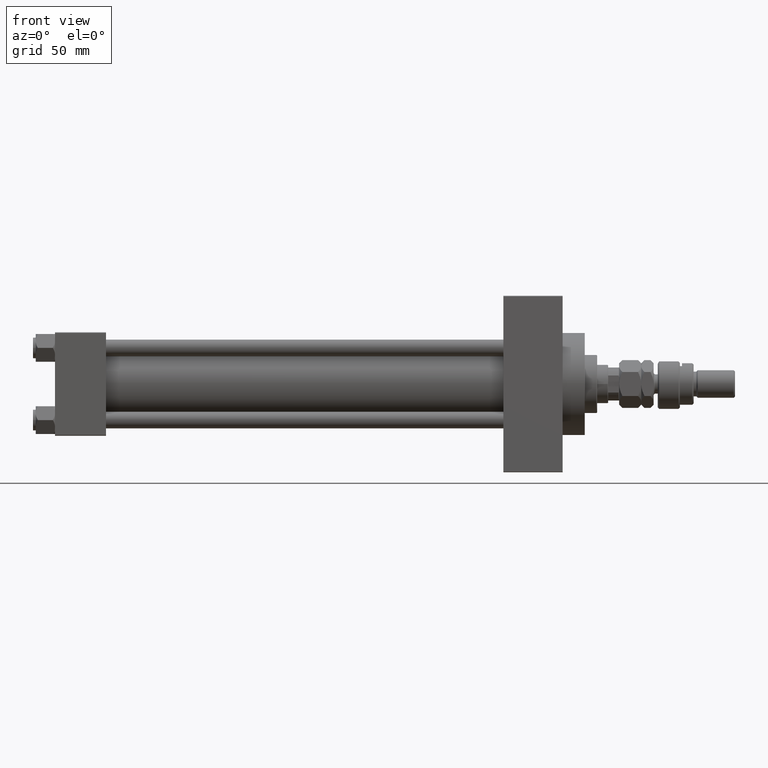
[diagram: clean part render]
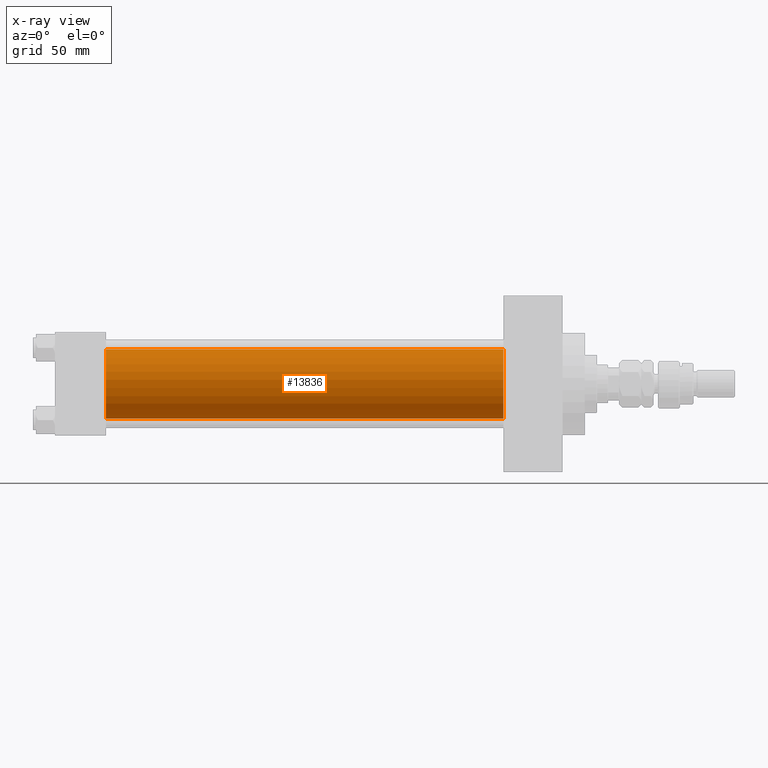
[diagram: x-ray — body ghosted, one internal face saturated and labeled with its STEP entity id]
A machine part, front view, then the same camera in x-ray: the body is ghosted and one INTERNAL B-rep face — a face not visible from any outside direction — is saturated and labeled: STEP entity #13836.
In plain terms, the highlighted cylindrical surface (edge-blend (fillet) strip) has radius 25 mm, axis along (-1, -0, -0).
Its self-contained STEP definition (entity closure, byte-faithful):
#464 = CARTESIAN_POINT ( 'NONE',  ( 324.9999999999999432, -2.602085213965210642E-15, 0.000000000000000000 ) ) ;
#1517 = VECTOR ( 'NONE', #9711, 1000.000000000000000 ) ;
#2127 = CARTESIAN_POINT ( 'NONE',  ( 324.9999999999999432, 4.595317839031724996E-16, -25.00000000000000000 ) ) ;
#5190 = CARTESIAN_POINT ( 'NONE',  ( 37.00000000000000000, -2.602085213965210642E-15, 0.000000000000000000 ) ) ;
#8903 = LINE ( 'NONE', #20793, #49412 ) ;
#9711 = DIRECTION ( 'NONE',  ( -1.000000000000000000, -0.000000000000000000, -0.000000000000000000 ) ) ;
#11388 = FACE_OUTER_BOUND ( 'NONE', #44833, .T. ) ;
#11885 = DIRECTION ( 'NONE',  ( 0.000000000000000000, 0.000000000000000000, 1.000000000000000000 ) ) ;
#13836 = ADVANCED_FACE ( 'NONE', ( #11388 ), #35146, .F. ) ;
#13870 = ORIENTED_EDGE ( 'NONE', *, *, #28477, .T. ) ;
#14251 = CARTESIAN_POINT ( 'NONE',  ( 324.9999999999999432, -2.602085213965210642E-15, 0.000000000000000000 ) ) ;
#15724 = AXIS2_PLACEMENT_3D ( 'NONE', #464, #26829, #11885 ) ;
#16110 = DIRECTION ( 'NONE',  ( 0.000000000000000000, 0.000000000000000000, -1.000000000000000000 ) ) ;
#16121 = ORIENTED_EDGE ( 'NONE', *, *, #27561, .T. ) ;
#16168 = ORIENTED_EDGE ( 'NONE', *, *, #39318, .F. ) ;
#17620 = CARTESIAN_POINT ( 'NONE',  ( 37.00000000000000000, 4.595317839031724996E-16, -25.00000000000000000 ) ) ;
#18483 = EDGE_CURVE ( 'NONE', #34912, #22993, #35252, .T. ) ;
#20793 = CARTESIAN_POINT ( 'NONE',  ( 324.9999999999999432, -2.602085213965210642E-15, 25.00000000000000000 ) ) ;
#21762 = CIRCLE ( 'NONE', #28202, 25.00000000000000000 ) ;
#22993 = VERTEX_POINT ( 'NONE', #17620 ) ;
#25592 = AXIS2_PLACEMENT_3D ( 'NONE', #5190, #40102, #16110 ) ;
#26184 = VERTEX_POINT ( 'NONE', #2127 ) ;
#26829 = DIRECTION ( 'NONE',  ( -1.000000000000000000, -0.000000000000000000, -0.000000000000000000 ) ) ;
#27561 = EDGE_CURVE ( 'NONE', #47994, #26184, #21762, .T. ) ;
#28202 = AXIS2_PLACEMENT_3D ( 'NONE', #14251, #28939, #36762 ) ;
#28477 = EDGE_CURVE ( 'NONE', #26184, #22993, #45362, .T. ) ;
#28939 = DIRECTION ( 'NONE',  ( 1.000000000000000000, 0.000000000000000000, 0.000000000000000000 ) ) ;
#29455 = CARTESIAN_POINT ( 'NONE',  ( 324.9999999999999432, 4.595317839031724996E-16, -25.00000000000000000 ) ) ;
#34912 = VERTEX_POINT ( 'NONE', #37522 ) ;
#35146 = CYLINDRICAL_SURFACE ( 'NONE', #15724, 25.00000000000000000 ) ;
#35252 = CIRCLE ( 'NONE', #25592, 25.00000000000000000 ) ;
#36762 = DIRECTION ( 'NONE',  ( 0.000000000000000000, 0.000000000000000000, -1.000000000000000000 ) ) ;
#37522 = CARTESIAN_POINT ( 'NONE',  ( 37.00000000000000000, -2.602085213965210642E-15, 25.00000000000000000 ) ) ;
#39318 = EDGE_CURVE ( 'NONE', #47994, #34912, #8903, .T. ) ;
#40002 = DIRECTION ( 'NONE',  ( -1.000000000000000000, -0.000000000000000000, -0.000000000000000000 ) ) ;
#40102 = DIRECTION ( 'NONE',  ( 1.000000000000000000, 0.000000000000000000, 0.000000000000000000 ) ) ;
#44833 = EDGE_LOOP ( 'NONE', ( #16121, #13870, #49746, #16168 ) ) ;
#45362 = LINE ( 'NONE', #29455, #1517 ) ;
#46622 = CARTESIAN_POINT ( 'NONE',  ( 324.9999999999999432, -2.602085213965210642E-15, 25.00000000000000000 ) ) ;
#47994 = VERTEX_POINT ( 'NONE', #46622 ) ;
#49412 = VECTOR ( 'NONE', #40002, 1000.000000000000000 ) ;
#49746 = ORIENTED_EDGE ( 'NONE', *, *, #18483, .F. ) ;